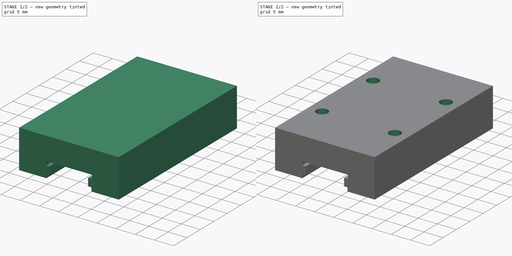
[diagram: build sequence overview — one tinted view per stage of 2, left to right]
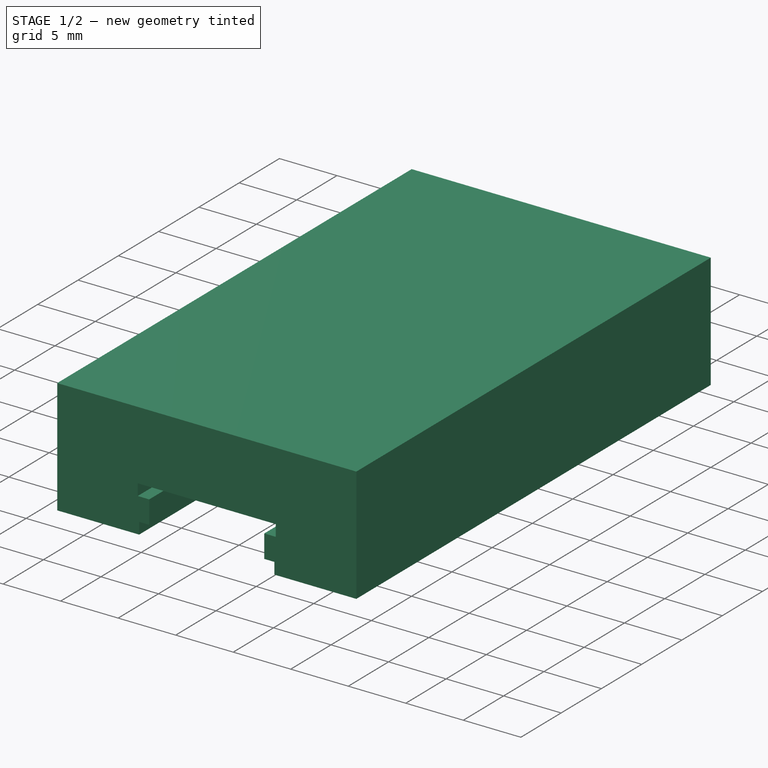
[diagram: stage 1 of 2 — iso view after this stage's code; geometry added in this stage tinted green]
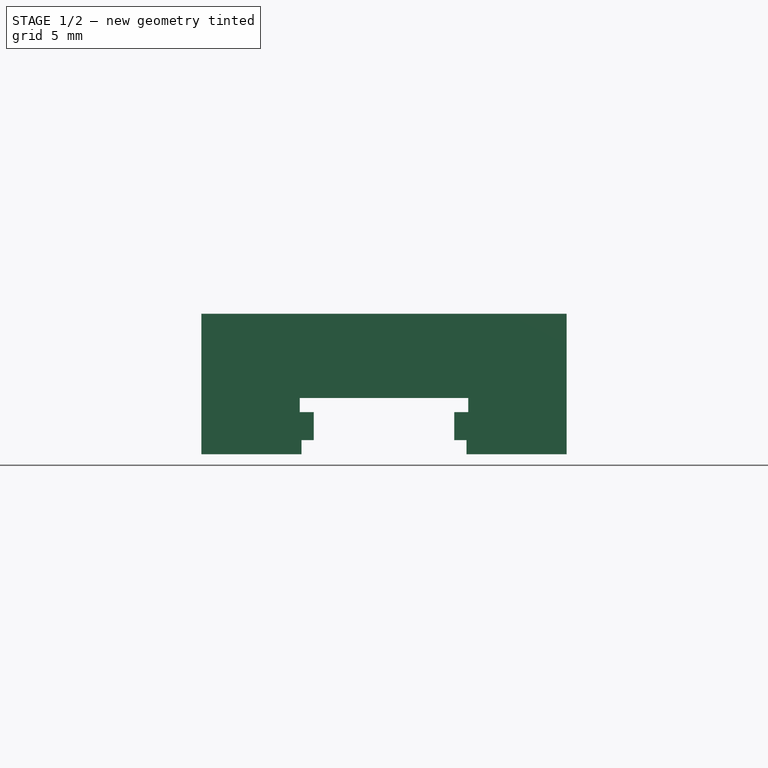
[diagram: stage 1 of 2 — front view after this stage's code; geometry added in this stage tinted green]
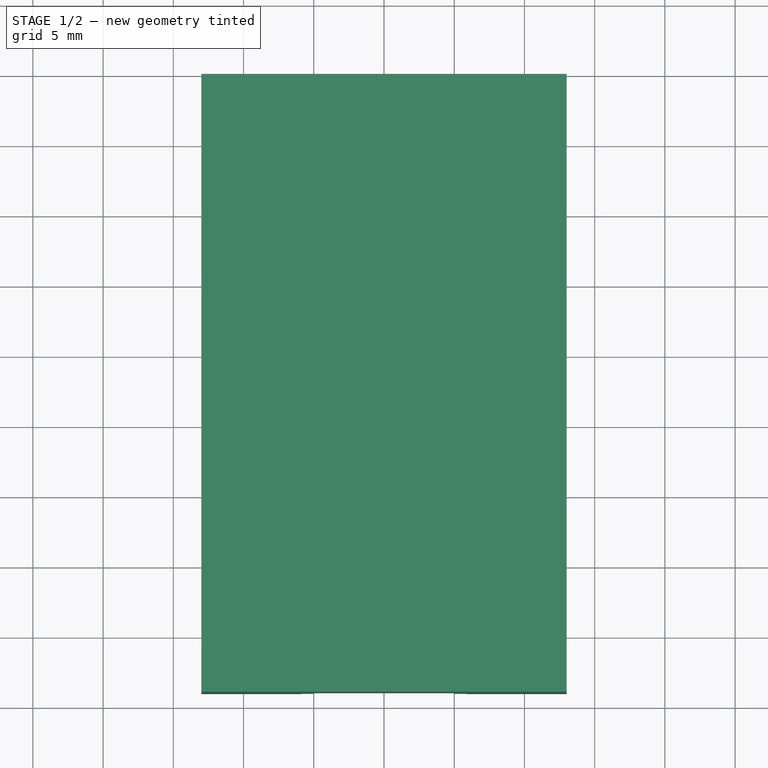
[diagram: stage 1 of 2 — top view after this stage's code; geometry added in this stage tinted green]
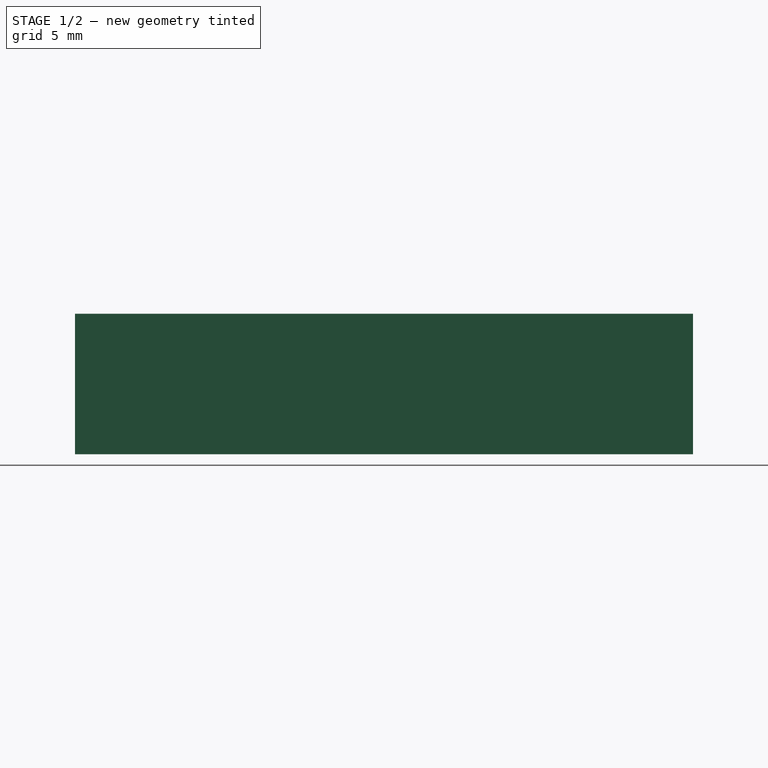
[diagram: stage 1 of 2 — right view after this stage's code; geometry added in this stage tinted green]
FCSTD DOCUMENT  (FreeCAD 0.14R3703 (Git))
Label: patin2
License: CC-BY 3.0
LicenseURL: http://creativecommons.org/licenses/by/3.0/
objects: Sketcher::SketchObject×2, PartDesign::Pad×1, PartDesign::Pocket×1, Part::Feature×1
note: 7 computed .brp shape members not serialized (recipe doc carries the construction recipe); baked Part::Feature solids carry a one-line shape summary decoded from their .brp

FEATURE [Sketcher::SketchObject] Sketch
  Placement = pos=(0,0,0) rot=(-1,0,0;4.71239rad)
  sketch-geometry (16):
    g0: LineSegment StartX=-13 StartY=-25.8443 StartZ=0 EndX=-13 EndY=-15.8443 EndZ=0
    g1: LineSegment StartX=-13 StartY=-15.8443 StartZ=0 EndX=13 EndY=-15.8443 EndZ=0
    g2: LineSegment StartX=13 StartY=-15.8443 StartZ=0 EndX=13 EndY=-25.8443 EndZ=0
    g3: LineSegment StartX=13 StartY=-25.8443 StartZ=0 EndX=5.87816 EndY=-25.8443 EndZ=0
    g4: LineSegment StartX=5.87816 StartY=-25.8443 StartZ=0 EndX=5.87816 EndY=-24.8443 EndZ=0
    g5: LineSegment StartX=5.87816 StartY=-24.8443 StartZ=0 EndX=5 EndY=-24.8443 EndZ=0
    g6: LineSegment StartX=5 StartY=-24.8443 StartZ=0 EndX=5 EndY=-22.8443 EndZ=0
    g7: LineSegment StartX=5 StartY=-22.8443 StartZ=0 EndX=6 EndY=-22.8443 EndZ=0
    g8: LineSegment StartX=6 StartY=-22.8443 StartZ=0 EndX=6 EndY=-21.8443 EndZ=0
    g9: LineSegment StartX=6 StartY=-21.8443 StartZ=0 EndX=-6 EndY=-21.8443 EndZ=0
    g10: LineSegment StartX=-6 StartY=-21.8443 StartZ=0 EndX=-6 EndY=-22.8443 EndZ=0
    g11: LineSegment StartX=-6 StartY=-22.8443 StartZ=0 EndX=-5 EndY=-22.8443 EndZ=0
    g12: LineSegment StartX=-5 StartY=-22.8443 StartZ=0 EndX=-5 EndY=-24.8443 EndZ=0
    g13: LineSegment StartX=-5 StartY=-24.8443 StartZ=0 EndX=-5.87816 EndY=-24.8443 EndZ=0
    g14: LineSegment StartX=-5.87816 StartY=-24.8443 StartZ=0 EndX=-5.87816 EndY=-25.8443 EndZ=0
    g15: LineSegment StartX=-5.87816 StartY=-25.8443 StartZ=0 EndX=-13 EndY=-25.8443 EndZ=0
  constraints (47):
    c: Vertical(g0)
    c: Coincident(g0,g1)
    c: Horizontal(g1)
    c: Coincident(g1,g2)
    c: Vertical(g2)
    c: Coincident(g2,g3)
    c: Coincident(g3,g4)
    c: Vertical(g4)
    c: Coincident(g4,g5)
    c: Coincident(g5,g6)
    c: Vertical(g6)
    c: Coincident(g6,g7)
    c: Coincident(g7,g8)
    c: Vertical(g8)
    c: Coincident(g8,g9)
    c: Horizontal(g9)
    c: Coincident(g9,g10)
    c: Vertical(g10)
    c: Coincident(g10,g11)
    c: Coincident(g11,g12)
    c: Vertical(g12)
    c: Coincident(g12,g13)
    c: Horizontal(g13)
    c: Coincident(g13,g14)
    c: Vertical(g14)
    c: Coincident(g14,g15)
    c: Symmetric(g0,g1,g-2)
    c: Coincident(g15,g0)
    c: DistanceX(g0,g1) = 26
    c: DistanceX(g9) = -12
    c: Symmetric(g9,g8,g-2)
    c: Horizontal(g15)
    c: Horizontal(g3)
    c: Horizontal(g7)
    c: Horizontal(g11)
    c: Horizontal(g5)
    c: Equal(g15,g3)
    c: Equal(g13,g5)
    c: Equal(g12,g6)
    c: Equal(g11,g7)
    c: Equal(g8,g10)
    c: DistanceY(g7,g8) = 1
    c: DistanceY(g6,g5) = -2
    c: DistanceY(g4) = 1
    c: DistanceY(g1,g2) = -10
    c: Equal(g14,g4)
    c: DistanceX(g10,g11) = 1
FEATURE [PartDesign::Pad] Pad
  Length = 44
  Length2 = 100
  Placement = pos=(0,0,0) rot=(-1,0,0;4.71239rad)
  Sketch = -> Sketch
  Type = 0
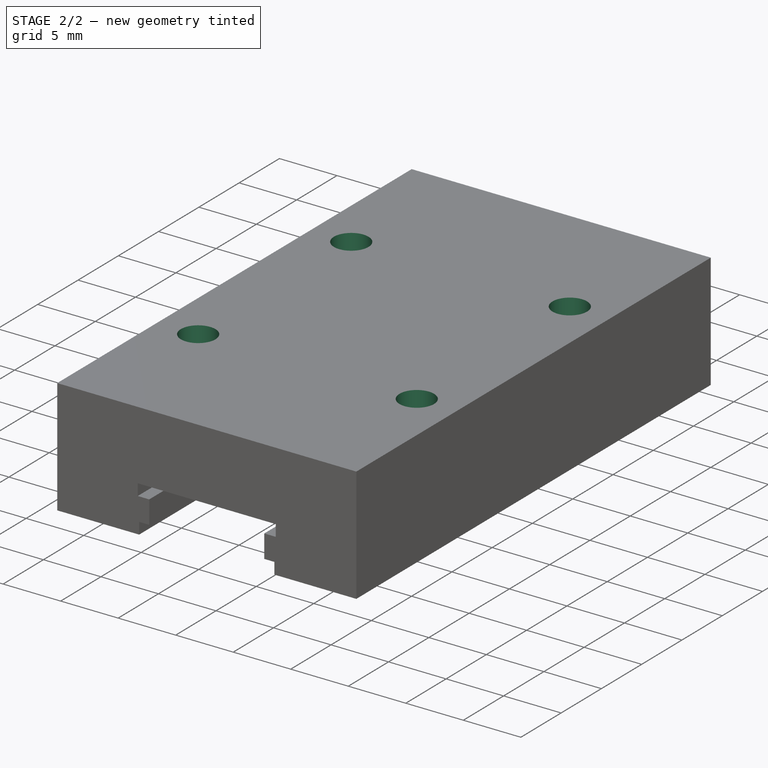
[diagram: stage 2 of 2 — iso view after this stage's code; geometry added in this stage tinted green]
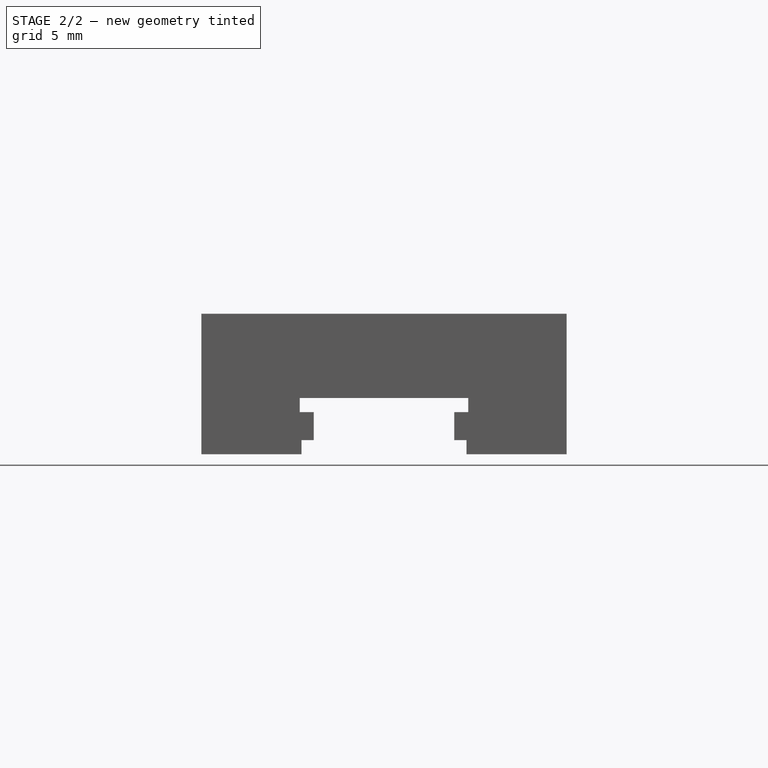
[diagram: stage 2 of 2 — front view after this stage's code; geometry added in this stage tinted green]
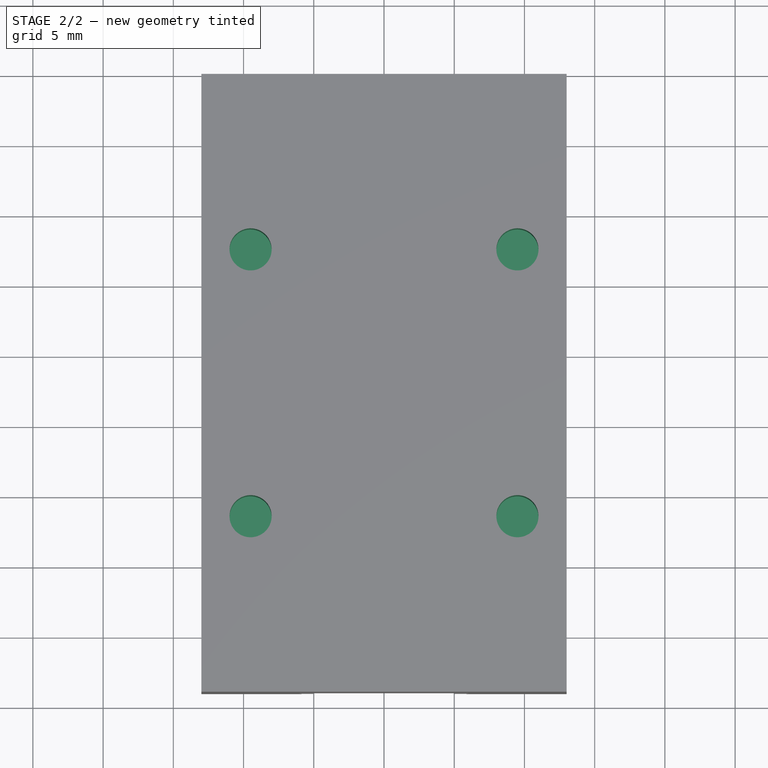
[diagram: stage 2 of 2 — top view after this stage's code; geometry added in this stage tinted green]
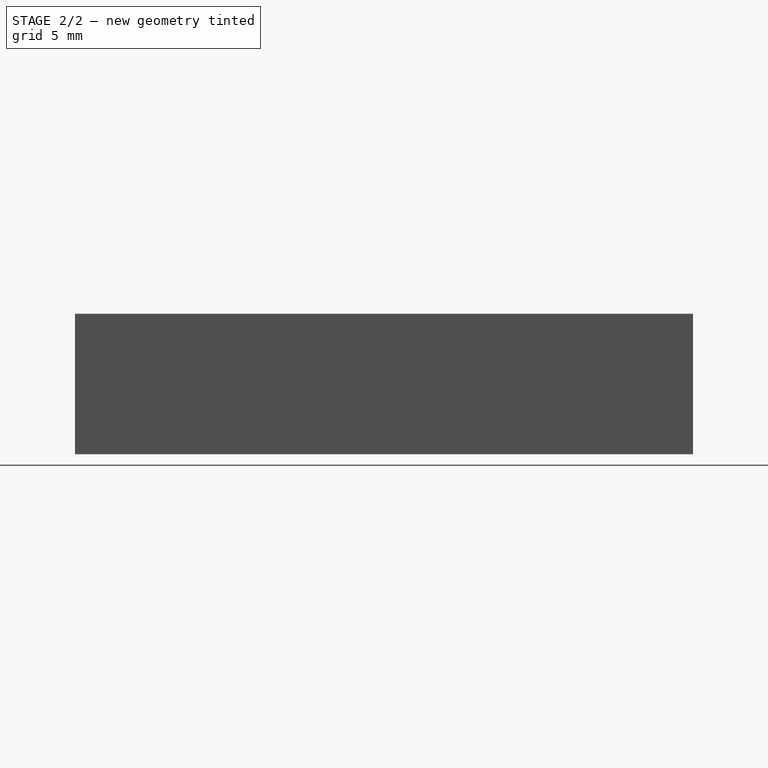
[diagram: stage 2 of 2 — right view after this stage's code; geometry added in this stage tinted green]
FEATURE [Sketcher::SketchObject] Sketch001
  ExternalGeometry = -> [Pad]
  Placement = pos=(0,0,-15.8443) rot=(0,0,1;3.14159rad)
  Support = -> Pad [Face2]
  sketch-geometry (4):
    g0: Circle CenterX=-9.5 CenterY=31.5 CenterZ=0 NormalX=0 NormalY=0 NormalZ=1 Radius=1.5
    g1: Circle CenterX=9.5 CenterY=31.5 CenterZ=0 NormalX=0 NormalY=0 NormalZ=1 Radius=1.5
    g2: Circle CenterX=-9.5 CenterY=12.5 CenterZ=0 NormalX=0 NormalY=0 NormalZ=1 Radius=1.5
    g3: Circle CenterX=9.5 CenterY=12.5 CenterZ=0 NormalX=0 NormalY=0 NormalZ=1 Radius=1.5
  constraints (10):
    c: Radius(g0) = 1.5
    c: Equal(g0,g1)
    c: Equal(g1,g3)
    c: Equal(g3,g2)
    c: Symmetric(g0,g1,g-2)
    c: Symmetric(g2,g3,g-2)
    c: DistanceX(g0,g-3) = -3.5
    c: DistanceX(g2,g-3) = -3.5
    c: DistanceY(g-3,g0) = -12.5
    c: DistanceY(g2,g-3) = -12.5
FEATURE [PartDesign::Pocket] Pocket
  Length = 5
  Placement = pos=(0,0,0) rot=(-1,0,0;4.71239rad)
  Sketch = -> Sketch001
  Type = 0
FEATURE [Part::Feature] Pocket001  label="patin"
  Placement = pos=(0,0,0) rot=(1,0,0;1.5708rad)
  shape: bbox 26 x 44 x 10 mm, 26 faces (baked)
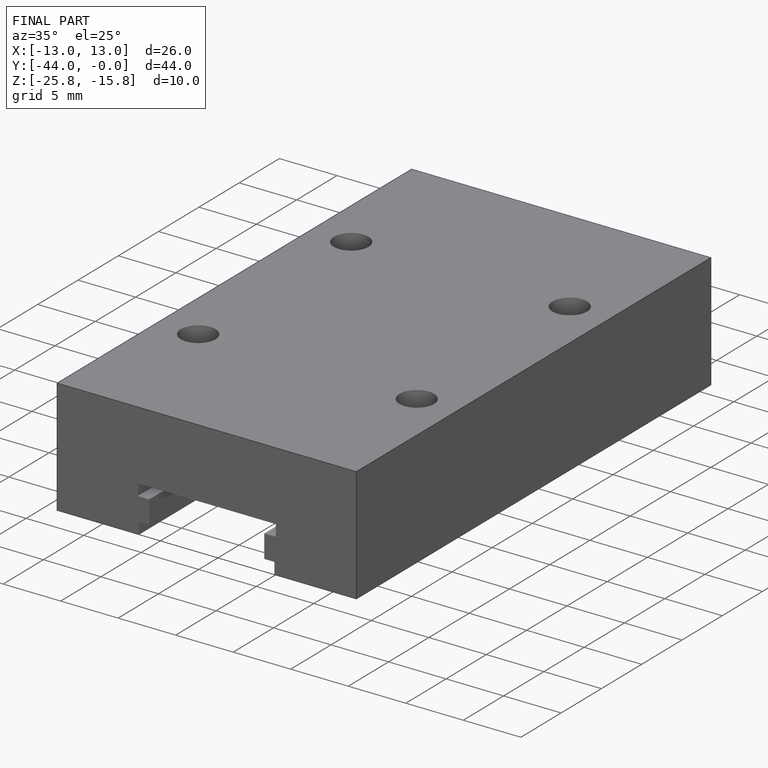
[diagram: finished part — iso view with bounding-box wireframe]
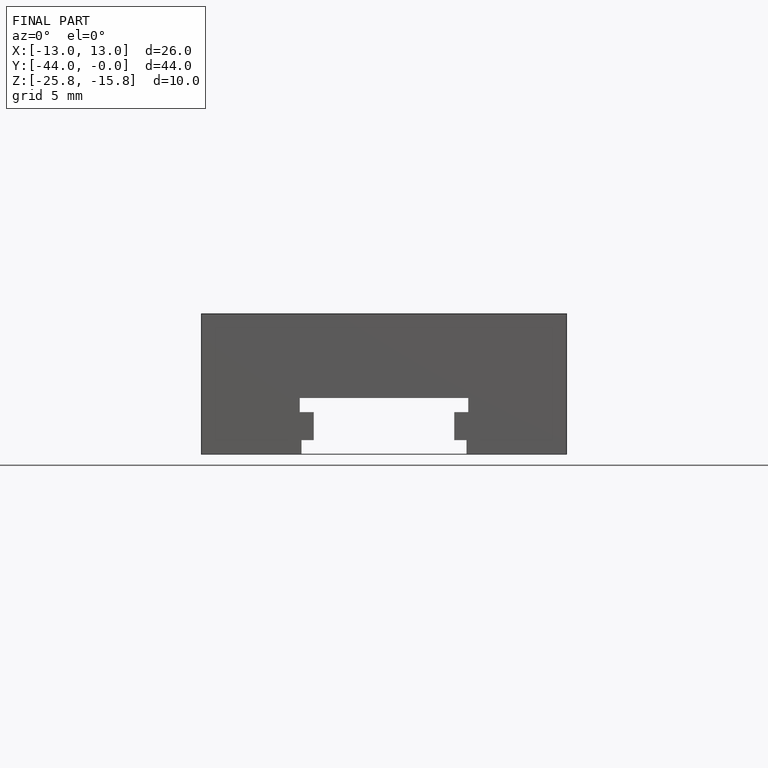
[diagram: finished part — front view with bounding-box wireframe]
